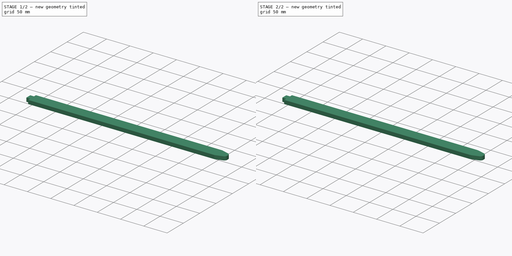
[diagram: build sequence overview — one tinted view per stage of 2, left to right]
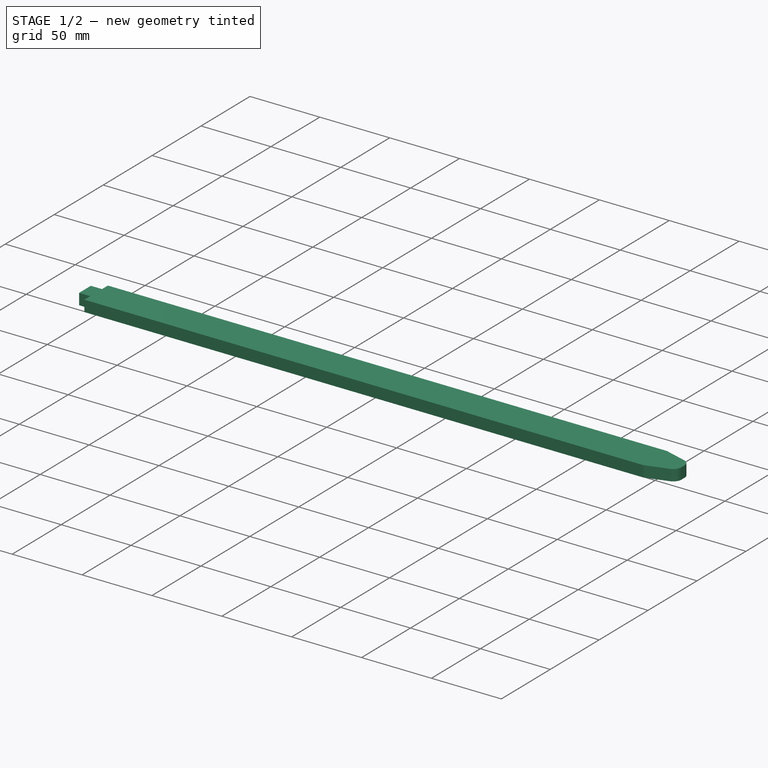
[diagram: stage 1 of 2 — iso view after this stage's code; geometry added in this stage tinted green]
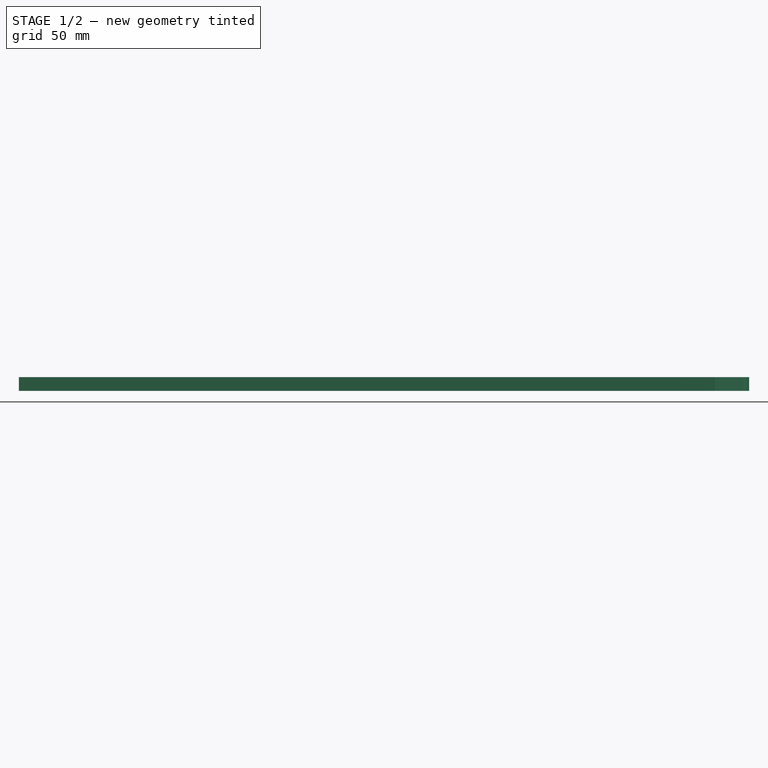
[diagram: stage 1 of 2 — front view after this stage's code; geometry added in this stage tinted green]
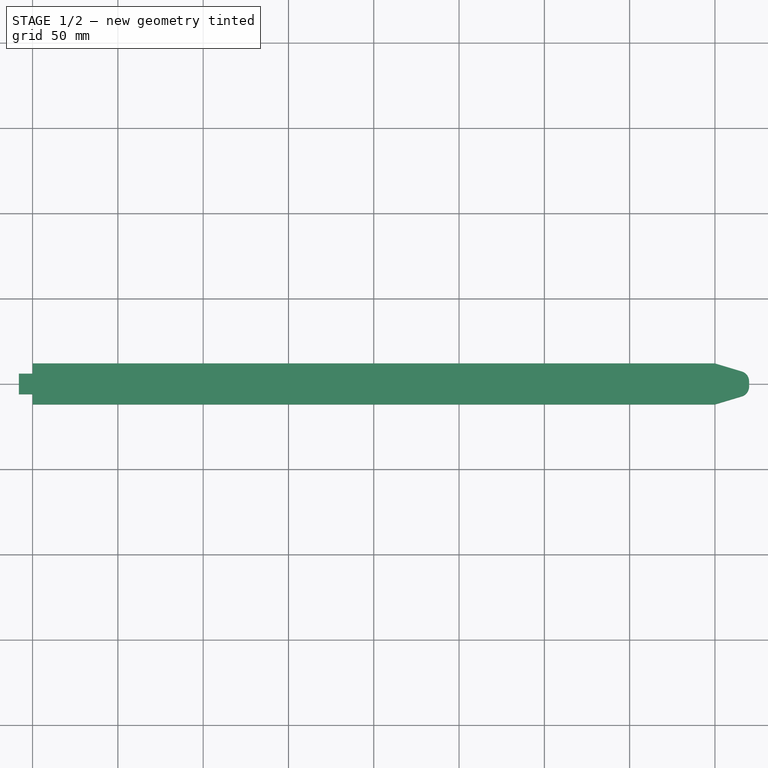
[diagram: stage 1 of 2 — top view after this stage's code; geometry added in this stage tinted green]
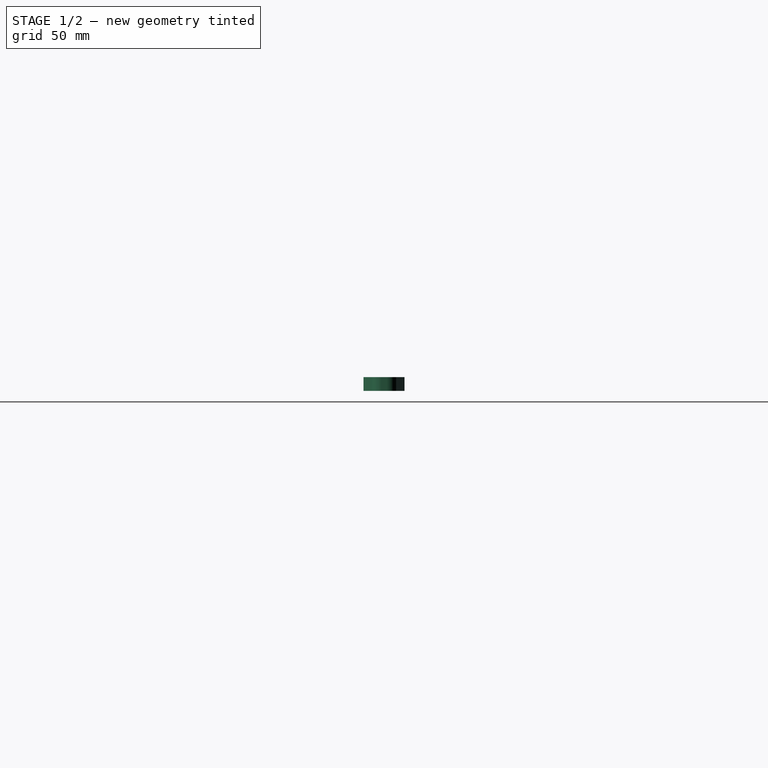
[diagram: stage 1 of 2 — right view after this stage's code; geometry added in this stage tinted green]
FCSTD DOCUMENT  (FreeCAD 0.14R3702 (Git))
Label: soporte_laser_tube_palos
License: CC-BY 3.0
LicenseURL: http://creativecommons.org/licenses/by/3.0/
objects: PartDesign::Fillet×2, Sketcher::SketchObject×1, PartDesign::Pad×1, Part::Part2DObjectPython×1
note: 6 computed .brp shape members not serialized (recipe doc carries the construction recipe); baked Part::Feature solids carry a one-line shape summary decoded from their .brp

FEATURE [Sketcher::SketchObject] Sketch
  sketch-geometry (12):
    g0: LineSegment StartX=-8 StartY=6 StartZ=0 EndX=0 EndY=6 EndZ=0
    g1: LineSegment [constr] StartX=0 StartY=6 StartZ=0 EndX=0 EndY=-6 EndZ=0
    g2: LineSegment StartX=0 StartY=-6 StartZ=0 EndX=-8 EndY=-6 EndZ=0
    g3: LineSegment StartX=-8 StartY=-6 StartZ=0 EndX=-8 EndY=6 EndZ=0
    g4: LineSegment StartX=0 StartY=12 StartZ=0 EndX=400 EndY=12 EndZ=0
    g5: LineSegment [constr] StartX=400 StartY=12 StartZ=0 EndX=400 EndY=-12 EndZ=0
    g6: LineSegment StartX=400 StartY=-12 StartZ=0 EndX=0 EndY=-12 EndZ=0
    g7: LineSegment StartX=420 StartY=6 StartZ=0 EndX=420 EndY=-6 EndZ=0
    g8: LineSegment StartX=400 StartY=12 StartZ=0 EndX=420 EndY=6 EndZ=0
    g9: LineSegment StartX=420 StartY=-6 StartZ=0 EndX=400 EndY=-12 EndZ=0
    g10: LineSegment StartX=0 StartY=12 StartZ=0 EndX=0 EndY=6 EndZ=0
    g11: LineSegment StartX=0 StartY=-6 StartZ=0 EndX=0 EndY=-12 EndZ=0
  constraints (33):
    c: Coincident(g0,g1)
    c: Coincident(g1,g2)
    c: Coincident(g2,g3)
    c: Coincident(g3,g0)
    c: Horizontal(g0)
    c: Horizontal(g2)
    c: Vertical(g1)
    c: Vertical(g3)
    c: Distance(g0) = 8
    c: Distance(g3) = 12
    c: Coincident(g4,g5)
    c: Coincident(g5,g6)
    c: Horizontal(g4)
    c: Horizontal(g6)
    c: Vertical(g5)
    c: DistanceY(g-1,g2) = -6
    c: PointOnObject(g-1,g1)
    c: DistanceY(g-1,g4) = 12
    c: Distance(g4) = 400
    c: Vertical(g7)
    c: Distance(g4,g7) = 20
    c: Distance(g7) = 12
    c: DistanceY(g-1,g7) = 6
    c: Coincident(g8,g4)
    c: Coincident(g8,g7)
    c: Coincident(g9,g7)
    c: Coincident(g9,g5)
    c: Coincident(g10,g4)
    c: Coincident(g10,g0)
    c: Vertical(g10)
    c: Coincident(g11,g1)
    c: Coincident(g11,g6)
    c: Vertical(g11)
FEATURE [PartDesign::Pad] Pad
  Length = 8
  Length2 = 100
  Sketch = -> Sketch
  Type = 0
FEATURE [PartDesign::Fillet] Fillet
  Base = -> Pad [Edge20,Edge17]
  Radius = 6
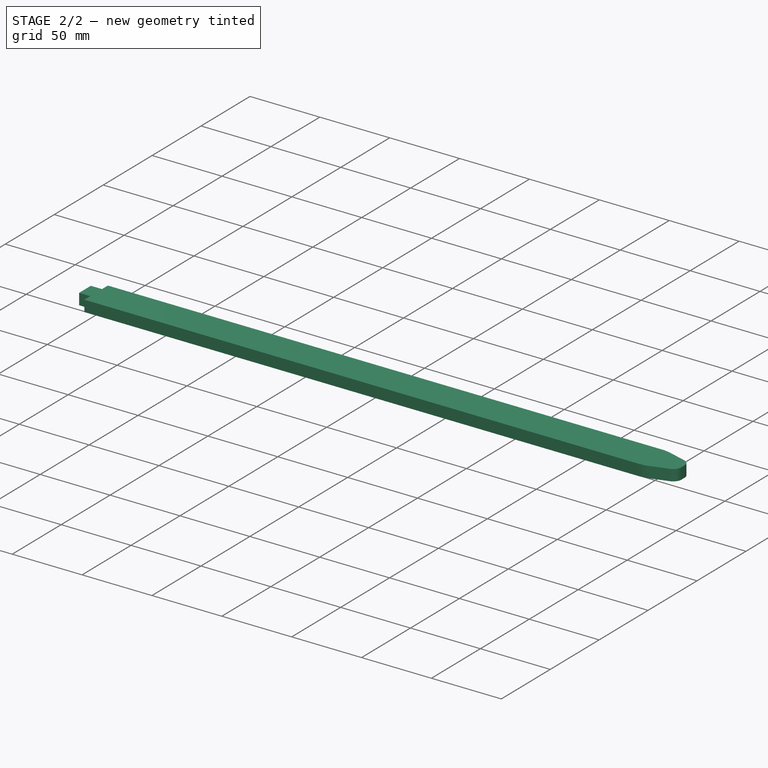
[diagram: stage 2 of 2 — iso view after this stage's code; geometry added in this stage tinted green]
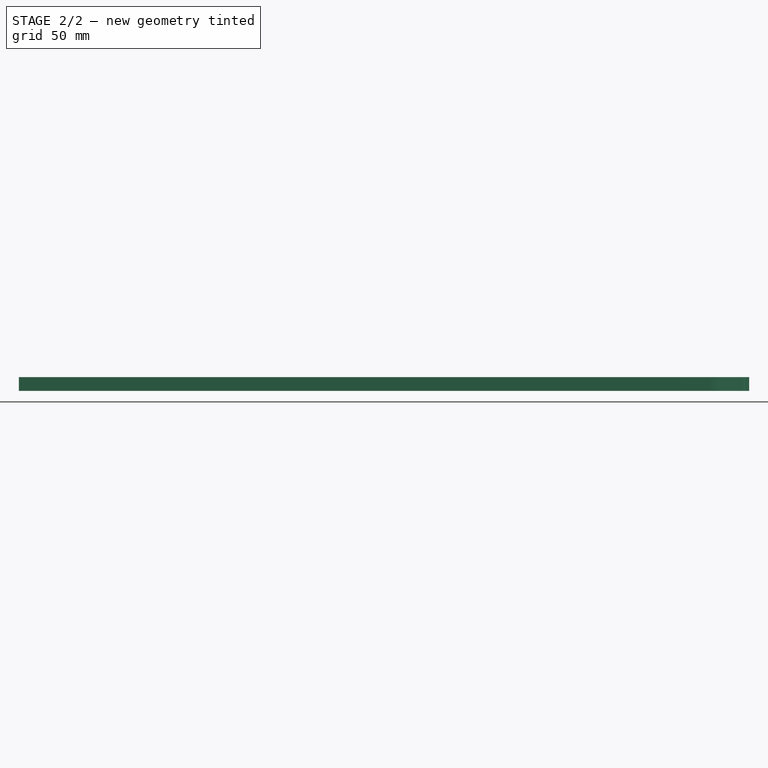
[diagram: stage 2 of 2 — front view after this stage's code; geometry added in this stage tinted green]
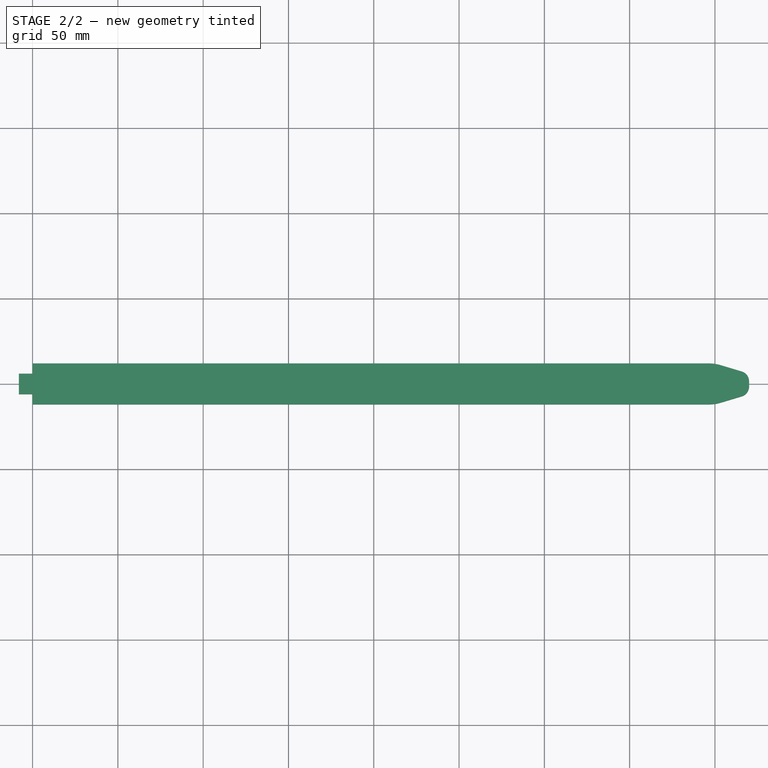
[diagram: stage 2 of 2 — top view after this stage's code; geometry added in this stage tinted green]
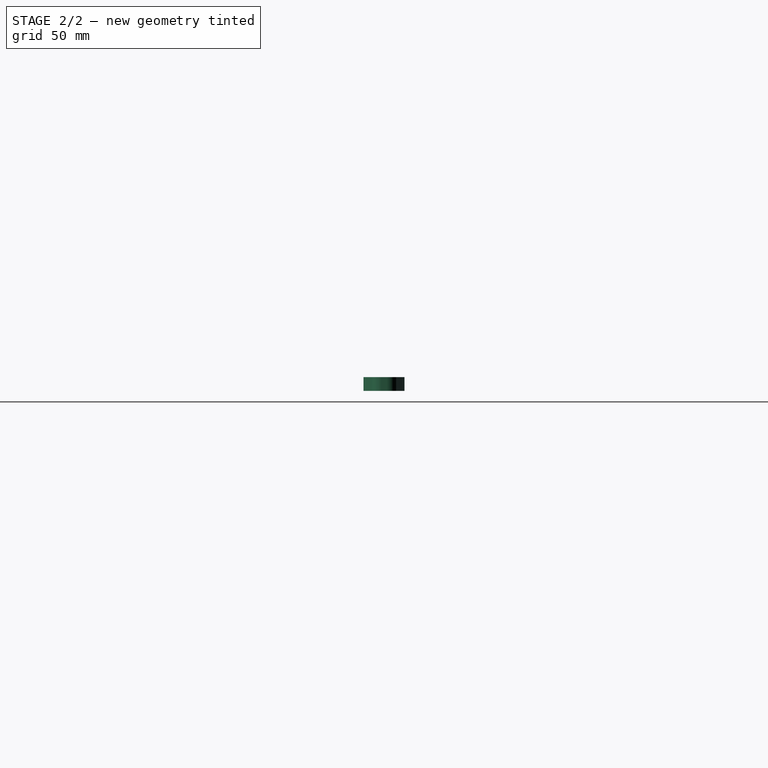
[diagram: stage 2 of 2 — right view after this stage's code; geometry added in this stage tinted green]
FEATURE [PartDesign::Fillet] Fillet001
  Base = -> Fillet [Edge3,Edge33]
  Radius = 23
FEATURE [Part::Part2DObjectPython] Shape2DView  # Draft 2D object (typed FeaturePython)
  Base = -> Fillet001
  HiddenLines = false
  Projection = (0,0,1)
  ProjectionMode = 0
  SegmentLength = 0.05
  Tessellation = false
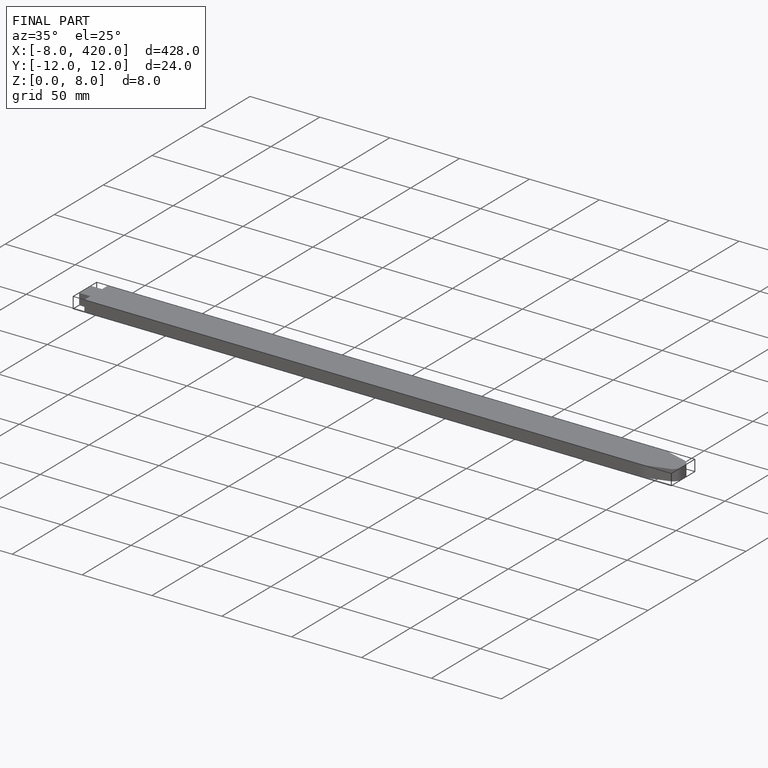
[diagram: finished part — iso view with bounding-box wireframe]
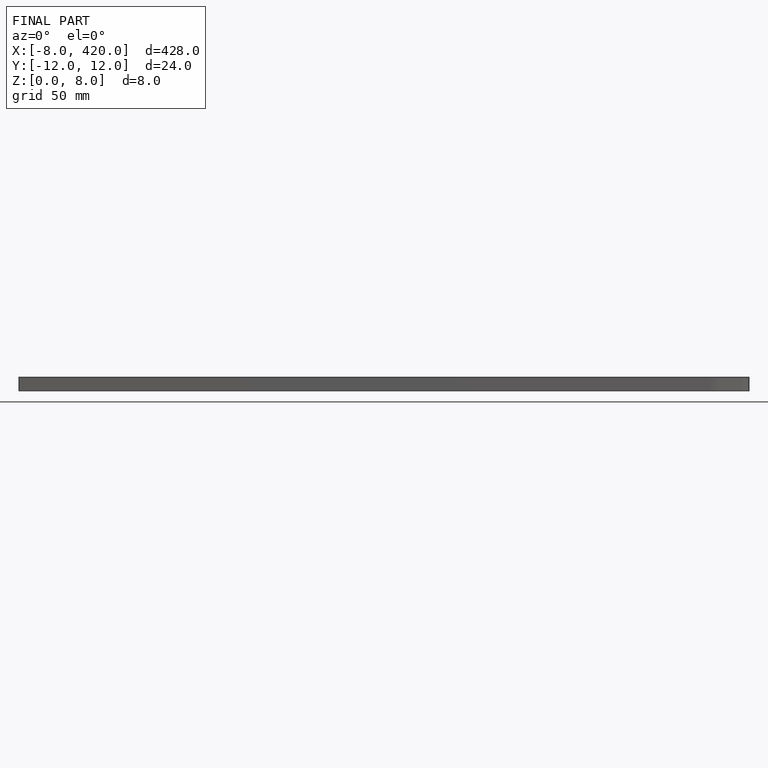
[diagram: finished part — front view with bounding-box wireframe]
